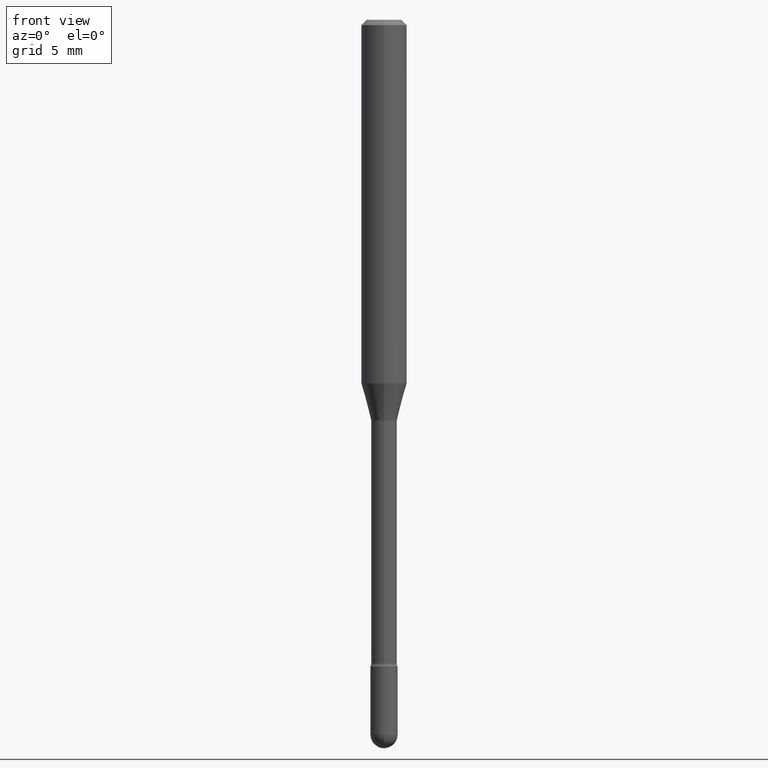
[diagram: clean part render]
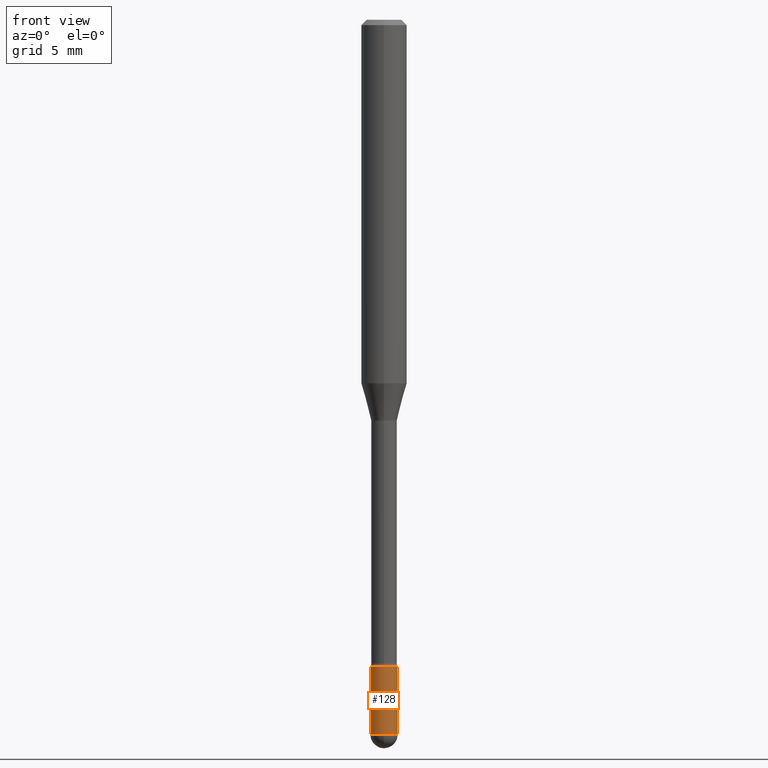
[diagram: same view with one face highlighted and labeled with its STEP entity id]
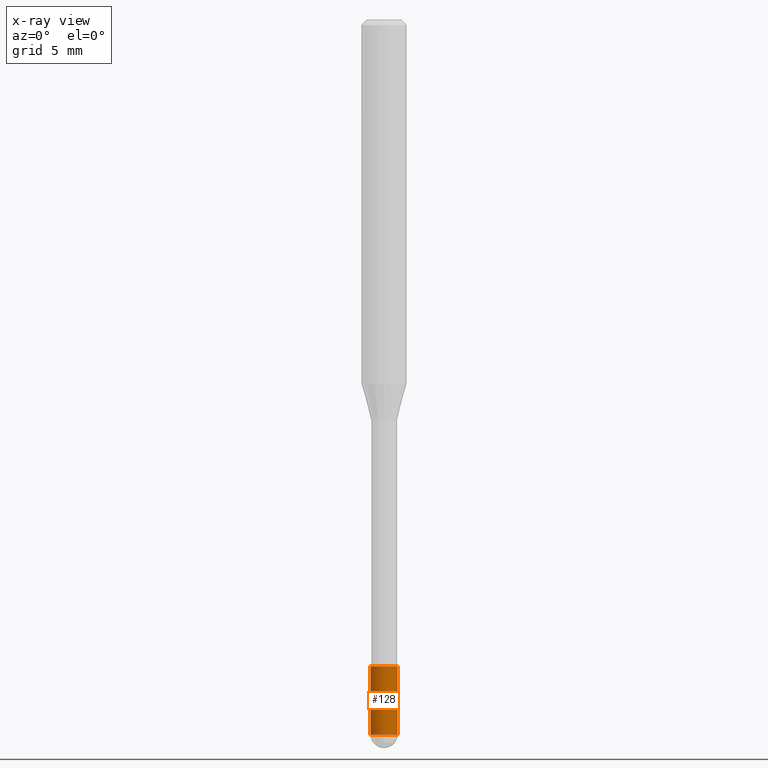
[diagram: x-ray of the same camera — body ghosted, the highlighted face saturated]
A machine part, front view. The second image highlights one B-rep face of the part: STEP entity #128.
The next image is the same camera in x-ray: the body ghosted, the highlighted face saturated — about 0% of this face is hidden behind the body in this view.
In plain terms, the highlighted cylindrical surface (edge-blend (fillet) strip) has radius 0.9525 mm, axis along (-0, 0, 1).
Its self-contained STEP definition (entity closure, byte-faithful):
#6 = EDGE_CURVE ( 'NONE', #238, #259, #223, .T. ) ;
#20 = CIRCLE ( 'NONE', #564, 0.03749999999999999861 ) ;
#43 = CARTESIAN_POINT ( 'NONE',  ( -2.664535259099897351E-16, -0.03750000000000687506, -1.962499999999999689 ) ) ;
#74 = CARTESIAN_POINT ( 'NONE',  ( 0.000000000000000000, 0.000000000000000000, 0.000000000000000000 ) ) ;
#84 = CYLINDRICAL_SURFACE ( 'NONE', #550, 0.03749999999999999861 ) ;
#91 = DIRECTION ( 'NONE',  ( -2.445468806185136877E-29, 3.491481338843145188E-15, 1.000000000000000000 ) ) ;
#102 = VECTOR ( 'NONE', #91, 39.37007874015748143 ) ;
#128 = ADVANCED_FACE ( 'NONE', ( #532 ), #84, .T. ) ;
#129 = CIRCLE ( 'NONE', #162, 0.03749999999999999861 ) ;
#130 = ORIENTED_EDGE ( 'NONE', *, *, #6, .F. ) ;
#131 = DIRECTION ( 'NONE',  ( -2.445468806185136597E-29, 3.491481338843145583E-15, 1.000000000000000000 ) ) ;
#137 = ORIENTED_EDGE ( 'NONE', *, *, #274, .T. ) ;
#138 = AXIS2_PLACEMENT_3D ( 'NONE', #377, #407, #359 ) ;
#154 = CARTESIAN_POINT ( 'NONE',  ( -0.03749999999999999861, -6.258252226053091317E-15, -1.775000000000000133 ) ) ;
#159 = DIRECTION ( 'NONE',  ( 1.000000000000000000, -6.982962677686268288E-15, 0.000000000000000000 ) ) ;
#162 = AXIS2_PLACEMENT_3D ( 'NONE', #331, #163, #159 ) ;
#163 = DIRECTION ( 'NONE',  ( -2.445468806185136597E-29, 3.491481338843145583E-15, 1.000000000000000000 ) ) ;
#182 = CARTESIAN_POINT ( 'NONE',  ( -0.03749999999999999861, 2.664535259100375598E-16, -1.844600658845589808E-30 ) ) ;
#190 = DIRECTION ( 'NONE',  ( -2.445468806185136597E-29, 3.491481338843145583E-15, 1.000000000000000000 ) ) ;
#223 = LINE ( 'NONE', #182, #102 ) ;
#238 = VERTEX_POINT ( 'NONE', #258 ) ;
#244 = CARTESIAN_POINT ( 'NONE',  ( 4.799232532138329338E-29, -6.852032127479672087E-15, -1.962499999999999689 ) ) ;
#249 = LINE ( 'NONE', #302, #544 ) ;
#258 = CARTESIAN_POINT ( 'NONE',  ( -0.03749999999999999861, -6.258252226053091317E-15, -1.962499999999999689 ) ) ;
#259 = VERTEX_POINT ( 'NONE', #154 ) ;
#263 = CIRCLE ( 'NONE', #138, 0.03749999999999999861 ) ;
#274 = EDGE_CURVE ( 'NONE', #354, #555, #20, .T. ) ;
#282 = EDGE_CURVE ( 'NONE', #238, #354, #263, .T. ) ;
#295 = DIRECTION ( 'NONE',  ( -2.445468806185136877E-29, 3.491481338843145188E-15, 1.000000000000000000 ) ) ;
#302 = CARTESIAN_POINT ( 'NONE',  ( 0.03749999999999999861, -2.618611004132350016E-16, 1.828566290923475922E-30 ) ) ;
#331 = CARTESIAN_POINT ( 'NONE',  ( 4.340707130978617347E-29, -6.197379376446583794E-15, -1.775000000000000133 ) ) ;
#354 = VERTEX_POINT ( 'NONE', #43 ) ;
#359 = DIRECTION ( 'NONE',  ( 1.000000000000000000, -6.982962677686268288E-15, 0.000000000000000000 ) ) ;
#377 = CARTESIAN_POINT ( 'NONE',  ( 4.799232532138329338E-29, -6.852032127479672087E-15, -1.962499999999999689 ) ) ;
#385 = EDGE_LOOP ( 'NONE', ( #130, #549, #137, #401, #547 ) ) ;
#401 = ORIENTED_EDGE ( 'NONE', *, *, #438, .T. ) ;
#407 = DIRECTION ( 'NONE',  ( -2.445468806185136597E-29, 3.491481338843145583E-15, 1.000000000000000000 ) ) ;
#424 = CARTESIAN_POINT ( 'NONE',  ( 0.03749999999999999861, -6.459240476859818795E-15, -1.775000000000000133 ) ) ;
#438 = EDGE_CURVE ( 'NONE', #555, #558, #249, .T. ) ;
#447 = DIRECTION ( 'NONE',  ( 1.000000000000000000, -6.982962677686266711E-15, 4.876176775795935793E-29 ) ) ;
#505 = DIRECTION ( 'NONE',  ( 1.000000000000000000, -6.982962677686268288E-15, 0.000000000000000000 ) ) ;
#530 = EDGE_CURVE ( 'NONE', #259, #558, #129, .T. ) ;
#532 = FACE_OUTER_BOUND ( 'NONE', #385, .T. ) ;
#544 = VECTOR ( 'NONE', #295, 39.37007874015748143 ) ;
#547 = ORIENTED_EDGE ( 'NONE', *, *, #530, .F. ) ;
#549 = ORIENTED_EDGE ( 'NONE', *, *, #282, .T. ) ;
#550 = AXIS2_PLACEMENT_3D ( 'NONE', #74, #131, #447 ) ;
#553 = CARTESIAN_POINT ( 'NONE',  ( 0.03749999999999999861, -6.786566852376363731E-15, -1.962499999999999689 ) ) ;
#555 = VERTEX_POINT ( 'NONE', #553 ) ;
#558 = VERTEX_POINT ( 'NONE', #424 ) ;
#564 = AXIS2_PLACEMENT_3D ( 'NONE', #244, #190, #505 ) ;